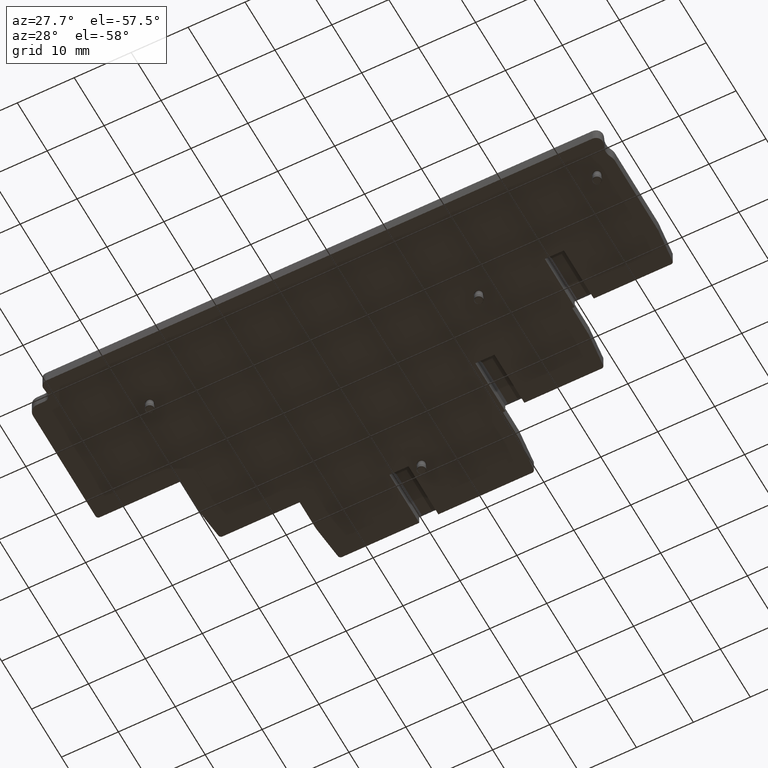
[diagram: clean part render]
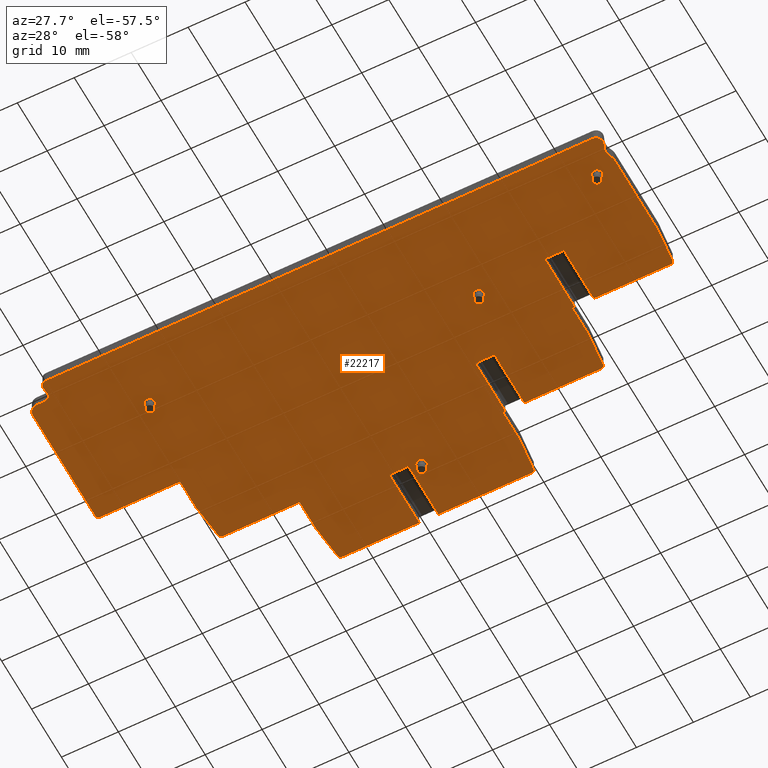
[diagram: same view with one face highlighted and labeled with its STEP entity id]
A machine part, auxiliary view. The second image highlights one B-rep face of the part: STEP entity #22217.
In plain terms, the highlighted planar face has unit normal (0, 0, -1).
Its self-contained STEP definition (entity closure, byte-faithful):
#487=PLANE('',#23594);
#926=CIRCLE('',#22851,1.);
#928=CIRCLE('',#22855,1.5);
#931=CIRCLE('',#22859,0.999999999999994);
#1053=CIRCLE('',#23400,0.8899999999996);
#1055=CIRCLE('',#23403,0.8899999999996);
#1057=CIRCLE('',#23406,0.8899999999996);
#1059=CIRCLE('',#23409,0.8899999999996);
#1077=CIRCLE('',#23444,1.2);
#1080=CIRCLE('',#23448,2.);
#1082=CIRCLE('',#23451,2.);
#1084=CIRCLE('',#23454,2.5);
#1101=CIRCLE('',#23493,0.5);
#1104=CIRCLE('',#23499,2.);
#1105=CIRCLE('',#23502,0.5);
#1108=CIRCLE('',#23508,2.);
#1109=CIRCLE('',#23511,0.5);
#1112=CIRCLE('',#23519,0.5);
#1113=CIRCLE('',#23522,2.);
#1116=CIRCLE('',#23531,0.5);
#1117=CIRCLE('',#23534,2.);
#1120=CIRCLE('',#23543,0.5);
#1121=CIRCLE('',#23546,2.);
#1519=LINE('',#29910,#4057);
#1526=LINE('',#29932,#4064);
#2607=LINE('',#33332,#5145);
#2611=LINE('',#33344,#5149);
#2613=LINE('',#33349,#5151);
#2618=LINE('',#33362,#5156);
#2622=LINE('',#33374,#5160);
#2624=LINE('',#33379,#5162);
#2629=LINE('',#33392,#5167);
#2637=LINE('',#33412,#5175);
#2641=LINE('',#33420,#5179);
#2642=LINE('',#33422,#5180);
#2647=LINE('',#33432,#5185);
#2648=LINE('',#33434,#5186);
#2652=LINE('',#33446,#5190);
#2655=LINE('',#33455,#5193);
#2659=LINE('',#33464,#5197);
#2663=LINE('',#33472,#5201);
#2671=LINE('',#33487,#5209);
#2674=LINE('',#33493,#5212);
#2675=LINE('',#33495,#5213);
#2680=LINE('',#33508,#5218);
#2682=LINE('',#33516,#5220);
#2686=LINE('',#33525,#5224);
#2690=LINE('',#33533,#5228);
#2698=LINE('',#33548,#5236);
#2701=LINE('',#33554,#5239);
#2702=LINE('',#33556,#5240);
#2707=LINE('',#33569,#5245);
#2781=LINE('',#33724,#5319);
#2784=LINE('',#33899,#5322);
#4057=VECTOR('',#24359,1000.);
#4064=VECTOR('',#24380,1000.);
#5145=VECTOR('',#26723,1000.);
#5149=VECTOR('',#26735,1000.);
#5151=VECTOR('',#26739,1000.);
#5156=VECTOR('',#26752,1000.);
#5160=VECTOR('',#26764,1000.);
#5162=VECTOR('',#26768,1000.);
#5167=VECTOR('',#26781,1000.);
#5175=VECTOR('',#26797,1000.);
#5179=VECTOR('',#26801,1000.);
#5180=VECTOR('',#26804,1000.);
#5185=VECTOR('',#26811,1000.);
#5186=VECTOR('',#26814,1000.);
#5190=VECTOR('',#26826,1000.);
#5193=VECTOR('',#26837,1000.);
#5197=VECTOR('',#26843,1000.);
#5201=VECTOR('',#26847,1000.);
#5209=VECTOR('',#26857,1000.);
#5212=VECTOR('',#26862,1000.);
#5213=VECTOR('',#26865,1000.);
#5218=VECTOR('',#26878,1000.);
#5220=VECTOR('',#26888,1000.);
#5224=VECTOR('',#26894,1000.);
#5228=VECTOR('',#26898,1000.);
#5236=VECTOR('',#26908,1000.);
#5239=VECTOR('',#26913,1000.);
#5240=VECTOR('',#26916,1000.);
#5245=VECTOR('',#26929,1000.);
#5319=VECTOR('',#27089,1000.);
#5322=VECTOR('',#27102,1000.);
#9680=ORIENTED_EDGE('',*,*,#14498,.T.);
#9681=ORIENTED_EDGE('',*,*,#14496,.T.);
#9682=ORIENTED_EDGE('',*,*,#14494,.T.);
#9683=ORIENTED_EDGE('',*,*,#14492,.T.);
#9684=ORIENTED_EDGE('',*,*,#14801,.T.);
#9685=ORIENTED_EDGE('',*,*,#13164,.T.);
#9686=ORIENTED_EDGE('',*,*,#13168,.T.);
#9687=ORIENTED_EDGE('',*,*,#13177,.T.);
#9688=ORIENTED_EDGE('',*,*,#13179,.T.);
#9689=ORIENTED_EDGE('',*,*,#13172,.T.);
#9690=ORIENTED_EDGE('',*,*,#14563,.T.);
#9691=ORIENTED_EDGE('',*,*,#14564,.T.);
#9692=ORIENTED_EDGE('',*,*,#14569,.T.);
#9693=ORIENTED_EDGE('',*,*,#14571,.T.);
#9694=ORIENTED_EDGE('',*,*,#14575,.T.);
#9695=ORIENTED_EDGE('',*,*,#14578,.T.);
#9696=ORIENTED_EDGE('',*,*,#14579,.T.);
#9697=ORIENTED_EDGE('',*,*,#14584,.T.);
#9698=ORIENTED_EDGE('',*,*,#14586,.T.);
#9699=ORIENTED_EDGE('',*,*,#14590,.T.);
#9700=ORIENTED_EDGE('',*,*,#14593,.T.);
#9701=ORIENTED_EDGE('',*,*,#14594,.T.);
#9702=ORIENTED_EDGE('',*,*,#14607,.T.);
#9703=ORIENTED_EDGE('',*,*,#14608,.T.);
#9704=ORIENTED_EDGE('',*,*,#14613,.F.);
#9705=ORIENTED_EDGE('',*,*,#14614,.T.);
#9706=ORIENTED_EDGE('',*,*,#14603,.T.);
#9707=ORIENTED_EDGE('',*,*,#14618,.T.);
#9708=ORIENTED_EDGE('',*,*,#14620,.T.);
#9709=ORIENTED_EDGE('',*,*,#14622,.T.);
#9710=ORIENTED_EDGE('',*,*,#14625,.T.);
#9711=ORIENTED_EDGE('',*,*,#14633,.T.);
#9712=ORIENTED_EDGE('',*,*,#14641,.F.);
#9713=ORIENTED_EDGE('',*,*,#14644,.F.);
#9714=ORIENTED_EDGE('',*,*,#14645,.F.);
#9715=ORIENTED_EDGE('',*,*,#14629,.T.);
#9716=ORIENTED_EDGE('',*,*,#14649,.T.);
#9717=ORIENTED_EDGE('',*,*,#14652,.T.);
#9718=ORIENTED_EDGE('',*,*,#14653,.T.);
#9719=ORIENTED_EDGE('',*,*,#14656,.T.);
#9720=ORIENTED_EDGE('',*,*,#14664,.T.);
#9721=ORIENTED_EDGE('',*,*,#14672,.T.);
#9722=ORIENTED_EDGE('',*,*,#14675,.F.);
#9723=ORIENTED_EDGE('',*,*,#14676,.F.);
#9724=ORIENTED_EDGE('',*,*,#14660,.T.);
#9725=ORIENTED_EDGE('',*,*,#14680,.T.);
#9726=ORIENTED_EDGE('',*,*,#14683,.T.);
#9727=ORIENTED_EDGE('',*,*,#14684,.T.);
#9728=ORIENTED_EDGE('',*,*,#14759,.T.);
#9729=ORIENTED_EDGE('',*,*,#14539,.F.);
#9730=ORIENTED_EDGE('',*,*,#14544,.F.);
#9731=ORIENTED_EDGE('',*,*,#14541,.F.);
#9732=ORIENTED_EDGE('',*,*,#14532,.T.);
#13164=EDGE_CURVE('',#16448,#16449,#926,.T.);
#13168=EDGE_CURVE('',#16449,#16452,#1519,.T.);
#13172=EDGE_CURVE('',#16456,#16454,#928,.T.);
#13177=EDGE_CURVE('',#16452,#16459,#931,.T.);
#13179=EDGE_CURVE('',#16459,#16456,#1526,.T.);
#14492=EDGE_CURVE('',#17358,#17358,#1053,.T.);
#14494=EDGE_CURVE('',#17360,#17360,#1055,.T.);
#14496=EDGE_CURVE('',#17362,#17362,#1057,.T.);
#14498=EDGE_CURVE('',#17364,#17364,#1059,.T.);
#14532=EDGE_CURVE('',#17390,#17391,#1077,.T.);
#14539=EDGE_CURVE('',#17397,#17395,#1080,.T.);
#14541=EDGE_CURVE('',#17390,#17399,#1082,.T.);
#14544=EDGE_CURVE('',#17399,#17397,#1084,.T.);
#14563=EDGE_CURVE('',#16454,#17417,#2607,.T.);
#14564=EDGE_CURVE('',#17417,#17418,#1101,.T.);
#14569=EDGE_CURVE('',#17418,#17421,#2611,.T.);
#14571=EDGE_CURVE('',#17421,#17423,#2613,.T.);
#14575=EDGE_CURVE('',#17423,#17425,#1104,.T.);
#14578=EDGE_CURVE('',#17425,#17427,#2618,.T.);
#14579=EDGE_CURVE('',#17427,#17428,#1105,.T.);
#14584=EDGE_CURVE('',#17428,#17431,#2622,.T.);
#14586=EDGE_CURVE('',#17431,#17433,#2624,.T.);
#14590=EDGE_CURVE('',#17433,#17435,#1108,.T.);
#14593=EDGE_CURVE('',#17435,#17437,#2629,.T.);
#14594=EDGE_CURVE('',#17437,#17438,#1109,.T.);
#14603=EDGE_CURVE('',#17446,#17445,#2637,.T.);
#14607=EDGE_CURVE('',#17438,#17449,#2641,.T.);
#14608=EDGE_CURVE('',#17449,#17450,#2642,.T.);
#14613=EDGE_CURVE('',#17453,#17450,#2647,.T.);
#14614=EDGE_CURVE('',#17453,#17446,#2648,.T.);
#14618=EDGE_CURVE('',#17445,#17455,#1112,.T.);
#14620=EDGE_CURVE('',#17455,#17457,#2652,.T.);
#14622=EDGE_CURVE('',#17457,#17458,#1113,.T.);
#14625=EDGE_CURVE('',#17458,#17460,#2655,.T.);
#14629=EDGE_CURVE('',#17464,#17463,#2659,.T.);
#14633=EDGE_CURVE('',#17460,#17467,#2663,.T.);
#14641=EDGE_CURVE('',#17473,#17467,#2671,.T.);
#14644=EDGE_CURVE('',#17475,#17473,#2674,.T.);
#14645=EDGE_CURVE('',#17464,#17475,#2675,.T.);
#14649=EDGE_CURVE('',#17463,#17477,#1116,.T.);
#14652=EDGE_CURVE('',#17477,#17479,#2680,.T.);
#14653=EDGE_CURVE('',#17479,#17480,#1117,.T.);
#14656=EDGE_CURVE('',#17480,#17482,#2682,.T.);
#14660=EDGE_CURVE('',#17486,#17485,#2686,.T.);
#14664=EDGE_CURVE('',#17482,#17489,#2690,.T.);
#14672=EDGE_CURVE('',#17489,#17495,#2698,.T.);
#14675=EDGE_CURVE('',#17497,#17495,#2701,.T.);
#14676=EDGE_CURVE('',#17486,#17497,#2702,.T.);
#14680=EDGE_CURVE('',#17485,#17499,#1120,.T.);
#14683=EDGE_CURVE('',#17499,#17501,#2707,.T.);
#14684=EDGE_CURVE('',#17501,#17502,#1121,.T.);
#14759=EDGE_CURVE('',#17502,#17395,#2781,.T.);
#14801=EDGE_CURVE('',#17391,#16448,#2784,.T.);
#16448=VERTEX_POINT('',#29902);
#16449=VERTEX_POINT('',#29903);
#16452=VERTEX_POINT('',#29911);
#16454=VERTEX_POINT('',#29917);
#16456=VERTEX_POINT('',#29920);
#16459=VERTEX_POINT('',#29928);
#17358=VERTEX_POINT('',#33158);
#17360=VERTEX_POINT('',#33163);
#17362=VERTEX_POINT('',#33168);
#17364=VERTEX_POINT('',#33173);
#17390=VERTEX_POINT('',#33250);
#17391=VERTEX_POINT('',#33251);
#17395=VERTEX_POINT('',#33260);
#17397=VERTEX_POINT('',#33264);
#17399=VERTEX_POINT('',#33270);
#17417=VERTEX_POINT('',#33331);
#17418=VERTEX_POINT('',#33335);
#17421=VERTEX_POINT('',#33343);
#17423=VERTEX_POINT('',#33348);
#17425=VERTEX_POINT('',#33355);
#17427=VERTEX_POINT('',#33361);
#17428=VERTEX_POINT('',#33365);
#17431=VERTEX_POINT('',#33373);
#17433=VERTEX_POINT('',#33378);
#17435=VERTEX_POINT('',#33385);
#17437=VERTEX_POINT('',#33391);
#17438=VERTEX_POINT('',#33395);
#17445=VERTEX_POINT('',#33411);
#17446=VERTEX_POINT('',#33413);
#17449=VERTEX_POINT('',#33419);
#17450=VERTEX_POINT('',#33423);
#17453=VERTEX_POINT('',#33431);
#17455=VERTEX_POINT('',#33440);
#17457=VERTEX_POINT('',#33445);
#17458=VERTEX_POINT('',#33450);
#17460=VERTEX_POINT('',#33456);
#17463=VERTEX_POINT('',#33463);
#17464=VERTEX_POINT('',#33465);
#17467=VERTEX_POINT('',#33471);
#17473=VERTEX_POINT('',#33486);
#17475=VERTEX_POINT('',#33492);
#17477=VERTEX_POINT('',#33501);
#17479=VERTEX_POINT('',#33507);
#17480=VERTEX_POINT('',#33511);
#17482=VERTEX_POINT('',#33517);
#17485=VERTEX_POINT('',#33524);
#17486=VERTEX_POINT('',#33526);
#17489=VERTEX_POINT('',#33532);
#17495=VERTEX_POINT('',#33547);
#17497=VERTEX_POINT('',#33553);
#17499=VERTEX_POINT('',#33562);
#17501=VERTEX_POINT('',#33568);
#17502=VERTEX_POINT('',#33572);
#19624=EDGE_LOOP('',(#9680));
#19625=EDGE_LOOP('',(#9681));
#19626=EDGE_LOOP('',(#9682));
#19627=EDGE_LOOP('',(#9683));
#19628=EDGE_LOOP('',(#9684,#9685,#9686,#9687,#9688,#9689,#9690,#9691,#9692,
#9693,#9694,#9695,#9696,#9697,#9698,#9699,#9700,#9701,#9702,#9703,#9704,
#9705,#9706,#9707,#9708,#9709,#9710,#9711,#9712,#9713,#9714,#9715,#9716,
#9717,#9718,#9719,#9720,#9721,#9722,#9723,#9724,#9725,#9726,#9727,#9728,
#9729,#9730,#9731,#9732));
#20906=FACE_BOUND('',#19624,.T.);
#20907=FACE_BOUND('',#19625,.T.);
#20908=FACE_BOUND('',#19626,.T.);
#20909=FACE_BOUND('',#19627,.T.);
#20910=FACE_BOUND('',#19628,.T.);
#22217=ADVANCED_FACE('',(#20906,#20907,#20908,#20909,#20910),#487,.T.);
#22851=AXIS2_PLACEMENT_3D('',#29901,#24351,#24352);
#22855=AXIS2_PLACEMENT_3D('',#29919,#24365,#24366);
#22859=AXIS2_PLACEMENT_3D('',#29929,#24375,#24376);
#23400=AXIS2_PLACEMENT_3D('',#33157,#26516,#26517);
#23403=AXIS2_PLACEMENT_3D('',#33162,#26522,#26523);
#23406=AXIS2_PLACEMENT_3D('',#33167,#26528,#26529);
#23409=AXIS2_PLACEMENT_3D('',#33172,#26534,#26535);
#23444=AXIS2_PLACEMENT_3D('',#33249,#26620,#26621);
#23448=AXIS2_PLACEMENT_3D('',#33265,#26632,#26633);
#23451=AXIS2_PLACEMENT_3D('',#33269,#26638,#26639);
#23454=AXIS2_PLACEMENT_3D('',#33274,#26645,#26646);
#23493=AXIS2_PLACEMENT_3D('',#33334,#26726,#26727);
#23499=AXIS2_PLACEMENT_3D('',#33356,#26746,#26747);
#23502=AXIS2_PLACEMENT_3D('',#33364,#26755,#26756);
#23508=AXIS2_PLACEMENT_3D('',#33386,#26775,#26776);
#23511=AXIS2_PLACEMENT_3D('',#33394,#26784,#26785);
#23519=AXIS2_PLACEMENT_3D('',#33441,#26821,#26822);
#23522=AXIS2_PLACEMENT_3D('',#33449,#26830,#26831);
#23531=AXIS2_PLACEMENT_3D('',#33502,#26872,#26873);
#23534=AXIS2_PLACEMENT_3D('',#33510,#26881,#26882);
#23543=AXIS2_PLACEMENT_3D('',#33563,#26923,#26924);
#23546=AXIS2_PLACEMENT_3D('',#33571,#26932,#26933);
#23594=AXIS2_PLACEMENT_3D('',#33901,#27105,#27106);
#24351=DIRECTION('',(0.,0.,-1.));
#24352=DIRECTION('',(-1.,0.,0.));
#24359=DIRECTION('',(0.0871557434716022,0.996194698028409,0.));
#24365=DIRECTION('',(0.,0.,-1.));
#24366=DIRECTION('',(-1.,0.,0.));
#24375=DIRECTION('',(0.,0.,1.));
#24376=DIRECTION('',(-1.,0.,0.));
#24380=DIRECTION('',(-1.,1.49846867589017E-14,0.));
#26516=DIRECTION('',(0.,0.,1.));
#26517=DIRECTION('',(-1.,0.,0.));
#26522=DIRECTION('',(0.,0.,1.));
#26523=DIRECTION('',(-1.,0.,0.));
#26528=DIRECTION('',(0.,0.,1.));
#26529=DIRECTION('',(-1.,0.,0.));
#26534=DIRECTION('',(0.,0.,1.));
#26535=DIRECTION('',(-1.,0.,0.));
#26620=DIRECTION('',(0.,0.,-1.));
#26621=DIRECTION('',(-1.,0.,0.));
#26632=DIRECTION('',(0.,0.,1.));
#26633=DIRECTION('',(-1.,0.,0.));
#26638=DIRECTION('',(0.,0.,1.));
#26639=DIRECTION('',(-1.,0.,0.));
#26645=DIRECTION('',(0.,0.,-1.));
#26646=DIRECTION('',(-1.,0.,0.));
#26723=DIRECTION('',(-3.75856753128315E-15,1.,0.));
#26726=DIRECTION('',(0.,0.,-1.));
#26727=DIRECTION('',(-1.,0.,0.));
#26735=DIRECTION('',(1.,2.36016799452626E-15,0.));
#26739=DIRECTION('',(-3.31351660406866E-15,1.,0.));
#26746=DIRECTION('',(0.,0.,-1.));
#26747=DIRECTION('',(-1.,0.,0.));
#26752=DIRECTION('',(0.107073199719949,0.994251140256692,0.));
#26755=DIRECTION('',(0.,0.,-1.));
#26756=DIRECTION('',(-1.,0.,0.));
#26764=DIRECTION('',(1.,2.36016799452626E-15,0.));
#26768=DIRECTION('',(-3.31351660406866E-15,1.,0.));
#26775=DIRECTION('',(0.,0.,-1.));
#26776=DIRECTION('',(-1.,0.,0.));
#26781=DIRECTION('',(0.107073199719949,0.994251140256692,0.));
#26784=DIRECTION('',(0.,0.,-1.));
#26785=DIRECTION('',(-1.,0.,0.));
#26797=DIRECTION('',(1.,2.28380961825284E-15,0.));
#26801=DIRECTION('',(1.,2.28380961825284E-15,0.));
#26804=DIRECTION('',(0.,-1.,0.));
#26811=DIRECTION('',(-1.,0.,0.));
#26814=DIRECTION('',(0.,1.,0.));
#26821=DIRECTION('',(0.,0.,-1.));
#26822=DIRECTION('',(-1.,0.,0.));
#26826=DIRECTION('',(0.107073199719953,-0.994251140256691,0.));
#26830=DIRECTION('',(0.,0.,-1.));
#26831=DIRECTION('',(-1.,0.,0.));
#26837=DIRECTION('',(3.75856754205758E-15,-1.,0.));
#26843=DIRECTION('',(1.,0.,0.));
#26847=DIRECTION('',(1.,0.,0.));
#26857=DIRECTION('',(0.,1.,0.));
#26862=DIRECTION('',(-1.,0.,0.));
#26865=DIRECTION('',(0.,-1.,0.));
#26872=DIRECTION('',(0.,0.,-1.));
#26873=DIRECTION('',(-1.,0.,0.));
#26878=DIRECTION('',(0.107073199719951,-0.994251140256692,0.));
#26881=DIRECTION('',(0.,0.,-1.));
#26882=DIRECTION('',(-1.,0.,0.));
#26888=DIRECTION('',(3.46944694200445E-15,-1.,0.));
#26894=DIRECTION('',(1.,0.,0.));
#26898=DIRECTION('',(1.,0.,0.));
#26908=DIRECTION('',(0.,-1.,0.));
#26913=DIRECTION('',(-1.,0.,0.));
#26916=DIRECTION('',(0.,-1.,0.));
#26923=DIRECTION('',(0.,0.,-1.));
#26924=DIRECTION('',(-1.,0.,0.));
#26929=DIRECTION('',(0.107073199719951,-0.994251140256692,0.));
#26932=DIRECTION('',(0.,0.,-1.));
#26933=DIRECTION('',(-1.,0.,0.));
#27089=DIRECTION('',(3.46944694200445E-15,-1.,0.));
#27102=DIRECTION('',(-1.,0.,0.));
#27105=DIRECTION('',(0.,0.,-1.));
#27106=DIRECTION('',(-1.,0.,0.));
#29901=CARTESIAN_POINT('',(-40.916902825996,-39.5999999999999,50.));
#29902=CARTESIAN_POINT('',(-40.916902825996,-40.5999999999999,50.0000000020164));
#29903=CARTESIAN_POINT('',(-41.9130975240244,-39.5128442565283,50.));
#29910=CARTESIAN_POINT('',(-38.1640537258614,3.33892208315363,50.));
#29911=CARTESIAN_POINT('',(-41.8146121915713,-38.3871517648645,50.));
#29917=CARTESIAN_POINT('',(-45.6999999996991,-35.8000000000001,50.));
#29919=CARTESIAN_POINT('',(-44.1999999996991,-35.8000000000001,50.));
#29920=CARTESIAN_POINT('',(-44.1999999996991,-37.3000000000001,50.));
#29928=CARTESIAN_POINT('',(-42.8108030116903,-37.3,50.));
#29929=CARTESIAN_POINT('',(-42.8108072376747,-38.3,50.));
#29932=CARTESIAN_POINT('',(-5.58928816107045E-13,-37.3000000000006,50.));
#33157=CARTESIAN_POINT('',(-28.5499986944379,-29.3999984882853,50.));
#33158=CARTESIAN_POINT('',(-29.4399986944375,-29.3999984882853,50.));
#33162=CARTESIAN_POINT('',(3.65000000000001,0.199999987503566,50.));
#33163=CARTESIAN_POINT('',(2.76000000000041,0.199999987503566,50.));
#33167=CARTESIAN_POINT('',(26.0999997950337,-23.399998940191,50.));
#33168=CARTESIAN_POINT('',(25.2099997950341,-23.399998940191,50.));
#33172=CARTESIAN_POINT('',(52.6500013050335,-34.399998488285,50.));
#33173=CARTESIAN_POINT('',(51.7600013050339,-34.399998488285,50.));
#33249=CARTESIAN_POINT('',(55.0941030948453,-39.3999999999999,50.));
#33250=CARTESIAN_POINT('',(56.2852577367565,-39.2545674759433,50.));
#33251=CARTESIAN_POINT('',(55.0941030948453,-40.5999999999999,50.));
#33260=CARTESIAN_POINT('',(56.2999999984649,-35.3738493904196,50.0000000020164));
#33264=CARTESIAN_POINT('',(56.0777777780157,-36.2900950850015,50.));
#33265=CARTESIAN_POINT('',(54.300000000238,-35.3738493904196,50.));
#33269=CARTESIAN_POINT('',(54.3000000002379,-39.4969550160376,50.));
#33270=CARTESIAN_POINT('',(56.0777777780157,-38.5807093214559,50.));
#33274=CARTESIAN_POINT('',(58.3000000002379,-37.4354022032287,50.));
#33331=CARTESIAN_POINT('',(-45.7000000000001,-14.8999999999998,50.));
#33332=CARTESIAN_POINT('',(-45.7000000000002,-1.7176653617964E-13,50.));
#33334=CARTESIAN_POINT('',(-45.2000000000001,-14.8999999999998,50.));
#33335=CARTESIAN_POINT('',(-45.2000000000001,-14.3999999999998,50.));
#33343=CARTESIAN_POINT('',(-31.1000000000001,-14.3999999999998,50.));
#33344=CARTESIAN_POINT('',(-45.7000000000001,-14.3999999999998,50.));
#33348=CARTESIAN_POINT('',(-31.1000000000001,-9.00738186134988,50.));
#33349=CARTESIAN_POINT('',(-31.1000000000002,-1.03050366386536E-13,50.));
#33355=CARTESIAN_POINT('',(-31.0885022805135,-8.79323546190997,50.));
#33356=CARTESIAN_POINT('',(-29.1000000000001,-9.00738186134987,50.));
#33361=CARTESIAN_POINT('',(-30.4480806738614,-2.84646340014,50.));
#33362=CARTESIAN_POINT('',(-29.7959756668228,3.20879737950393,50.));
#33364=CARTESIAN_POINT('',(-29.950955103733,-2.89999999999998,50.));
#33365=CARTESIAN_POINT('',(-29.950955103733,-2.39999999999998,50.));
#33373=CARTESIAN_POINT('',(-16.4000000000001,-2.39999999999994,50.));
#33374=CARTESIAN_POINT('',(-31.1000000000001,-2.39999999999998,50.));
#33378=CARTESIAN_POINT('',(-16.4000000000001,2.99261813864997,50.));
#33379=CARTESIAN_POINT('',(-16.4000000000001,-5.43416723067264E-14,50.));
#33385=CARTESIAN_POINT('',(-16.3885022805135,3.20676453808987,50.));
#33386=CARTESIAN_POINT('',(-14.4000000000001,2.99261813864997,50.));
#33391=CARTESIAN_POINT('',(-15.7480806738614,9.15353659985984,50.));
#33392=CARTESIAN_POINT('',(-16.5419981282172,1.78144595226951,50.));
#33394=CARTESIAN_POINT('',(-15.250955103733,9.09999999999987,50.));
#33395=CARTESIAN_POINT('',(-15.250955103733,9.59999999999987,50.));
#33411=CARTESIAN_POINT('',(18.150955103419,9.59999999999994,50.));
#33412=CARTESIAN_POINT('',(-16.4000000000002,9.59999999999987,50.));
#33413=CARTESIAN_POINT('',(1.67499987370023,9.59999999999991,50.));
#33419=CARTESIAN_POINT('',(-1.67500012629987,9.5999999999999,50.));
#33420=CARTESIAN_POINT('',(-16.4000000000002,9.59999999999987,50.));
#33422=CARTESIAN_POINT('',(-1.67500012629987,-0.399999999996474,50.));
#33423=CARTESIAN_POINT('',(-1.67500012629987,-0.399999999996474,50.));
#33431=CARTESIAN_POINT('',(1.67499987370023,-0.399999999996474,50.));
#33432=CARTESIAN_POINT('',(-1.67500012629987,-0.399999999996474,50.));
#33434=CARTESIAN_POINT('',(1.67499987370023,-0.399999999996474,50.));
#33440=CARTESIAN_POINT('',(18.6480806735474,9.15353659985992,50.));
#33441=CARTESIAN_POINT('',(18.150955103419,9.09999999999994,50.));
#33445=CARTESIAN_POINT('',(19.2885022801996,3.20676453808994,50.));
#33446=CARTESIAN_POINT('',(19.4087505846219,2.0901731398824,50.));
#33449=CARTESIAN_POINT('',(17.2999999996862,2.99261813865003,50.));
#33450=CARTESIAN_POINT('',(19.2999999996862,2.99261813865004,50.));
#33455=CARTESIAN_POINT('',(19.2999999996861,9.59999999999995,50.));
#33456=CARTESIAN_POINT('',(19.2999999996862,-2.39999996560025,50.));
#33463=CARTESIAN_POINT('',(36.6509551022464,-2.39999996560025,50.));
#33464=CARTESIAN_POINT('',(19.2999999996862,-2.39999996560025,50.));
#33465=CARTESIAN_POINT('',(23.0750473258309,-2.39999996560025,50.));
#33471=CARTESIAN_POINT('',(19.7250473258308,-2.39999996560025,50.));
#33472=CARTESIAN_POINT('',(19.2999999996862,-2.39999996560025,50.));
#33486=CARTESIAN_POINT('',(19.7250473258308,-12.3999999686254,50.));
#33487=CARTESIAN_POINT('',(19.7250473258308,-12.3999999686254,50.));
#33492=CARTESIAN_POINT('',(23.0750473258309,-12.3999999686254,50.));
#33493=CARTESIAN_POINT('',(23.0750473258309,-12.3999999686254,50.));
#33495=CARTESIAN_POINT('',(23.0750473258309,-12.3999999686254,50.));
#33501=CARTESIAN_POINT('',(37.1480806723747,-2.84646336574027,50.));
#33502=CARTESIAN_POINT('',(36.6509551022464,-2.89999996560025,50.));
#33507=CARTESIAN_POINT('',(37.7885022790269,-8.79323542751027,50.));
#33508=CARTESIAN_POINT('',(36.4191623793569,3.92206364085382,50.));
#33510=CARTESIAN_POINT('',(35.7999999985135,-9.00738182695017,50.));
#33511=CARTESIAN_POINT('',(37.7999999985135,-9.00738182695017,50.));
#33516=CARTESIAN_POINT('',(37.7999999985135,-2.39999996560025,50.));
#33517=CARTESIAN_POINT('',(37.7999999985135,-14.4000000000121,50.));
#33524=CARTESIAN_POINT('',(55.1509551021977,-14.3999999982885,50.0000000020164));
#33525=CARTESIAN_POINT('',(37.7999999996375,-14.3999999982885,50.0000000020164));
#33526=CARTESIAN_POINT('',(41.5750473257823,-14.3999999982885,50.0000000020164));
#33532=CARTESIAN_POINT('',(38.2250473258308,-14.3999999999997,50.));
#33533=CARTESIAN_POINT('',(37.7999999985135,-14.3999999999997,50.));
#33547=CARTESIAN_POINT('',(38.2250473258308,-24.3999999686254,50.));
#33548=CARTESIAN_POINT('',(38.2250473258308,0.,50.));
#33553=CARTESIAN_POINT('',(41.5750473257823,-24.3999999686254,50.0000000020164));
#33554=CARTESIAN_POINT('',(0.,-24.3999999686254,50.));
#33556=CARTESIAN_POINT('',(41.5750473257823,-24.4000000013137,50.0000000020164));
#33562=CARTESIAN_POINT('',(55.6480806723261,-14.8464633984286,50.));
#33563=CARTESIAN_POINT('',(55.1509551021977,-14.8999999982885,50.0000000020164));
#33568=CARTESIAN_POINT('',(56.2885022789782,-20.7932354601986,50.0000000020164));
#33569=CARTESIAN_POINT('',(54.9191623793082,-8.07793639183447,50.0000000020164));
#33571=CARTESIAN_POINT('',(54.2999999984648,-21.0073818596385,50.0000000020164));
#33572=CARTESIAN_POINT('',(56.2999999984648,-21.0073818596385,50.));
#33724=CARTESIAN_POINT('',(56.2999999984648,-14.3999999982885,50.0000000020164));
#33899=CARTESIAN_POINT('',(18.4999999999513,-40.5999999999999,50.0000000020164));
#33901=CARTESIAN_POINT('',(-44.0000001262612,-34.9999984555973,50.));